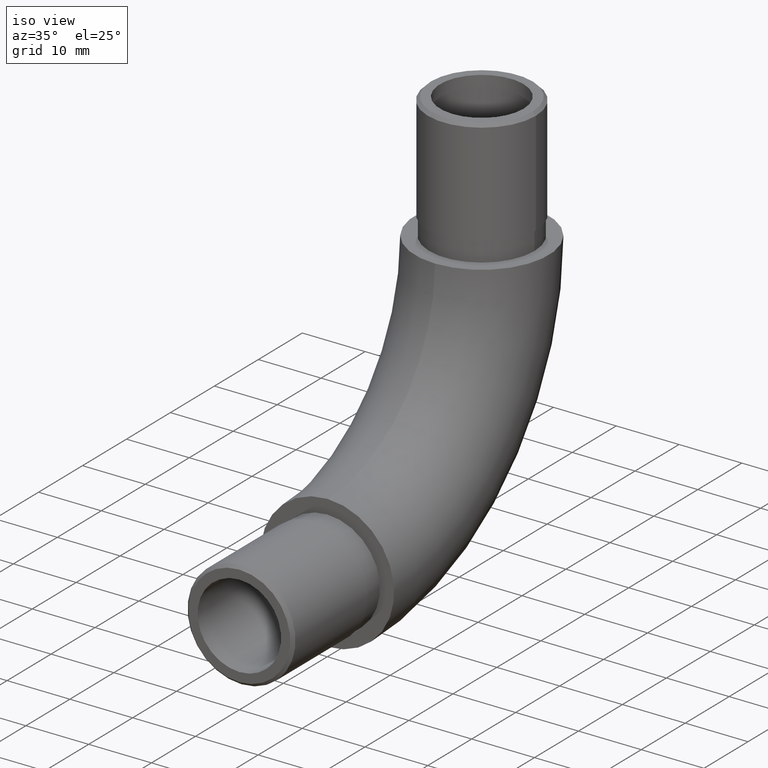
[diagram: clean part render]
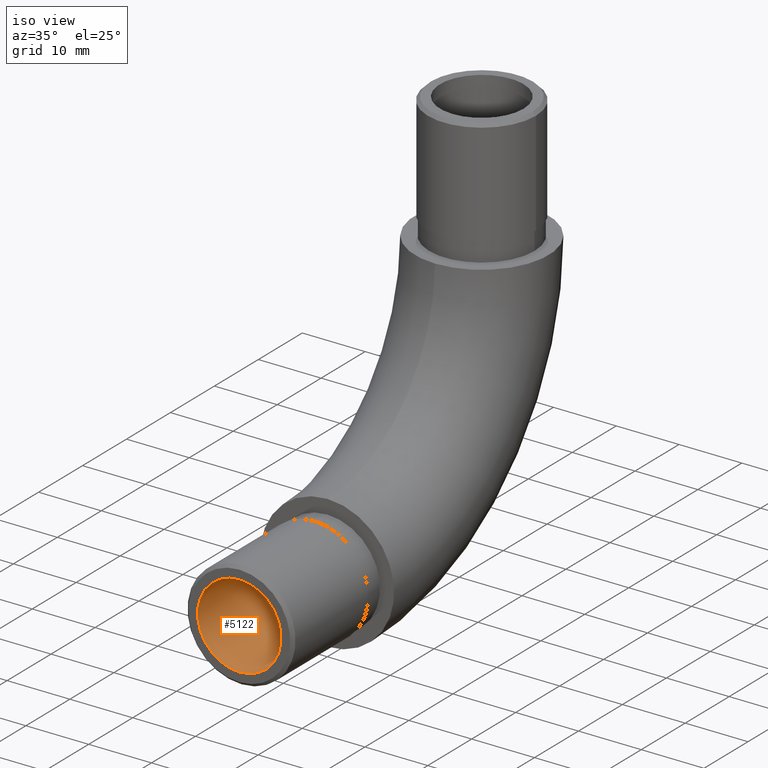
[diagram: same view with one face highlighted and labeled with its STEP entity id]
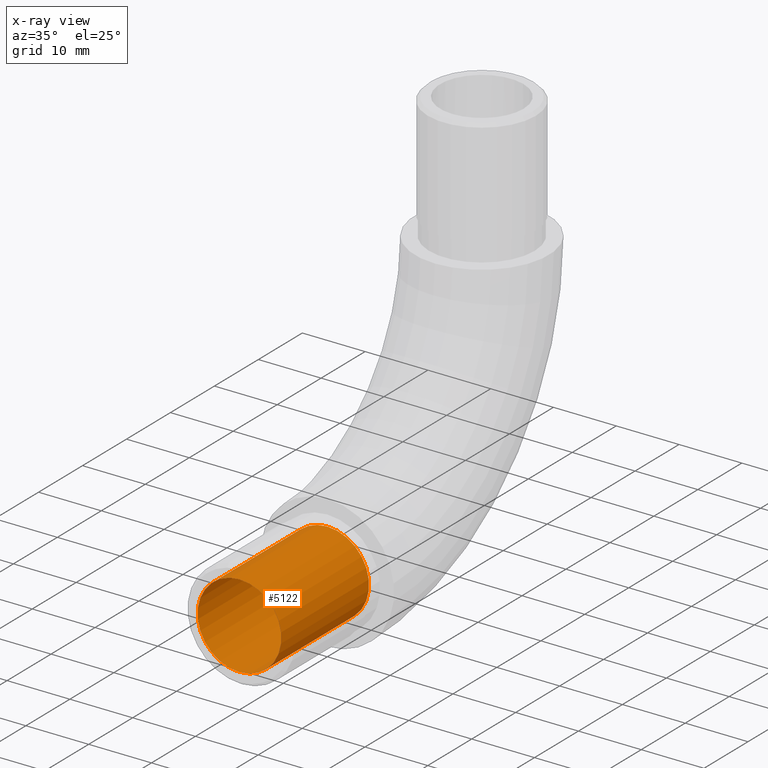
[diagram: x-ray of the same camera — body ghosted, the highlighted face saturated]
A machine part, iso view. The second image highlights one B-rep face of the part: STEP entity #5122.
The next image is the same camera in x-ray: the body ghosted, the highlighted face saturated — about 0% of this face is hidden behind the body in this view.
In plain terms, the highlighted cylindrical surface (bore or boss wall) has radius 6.65 mm, axis along (-0, 1, -0).
Its self-contained STEP definition (entity closure, byte-faithful):
#1228 = CARTESIAN_POINT ( 'NONE',  ( 0.0000000000000000000, -3.000000000000000000, 10.65000000000000000 ) ) ;
#1289 = EDGE_LOOP ( 'NONE', ( #3517 ) ) ;
#1318 = CARTESIAN_POINT ( 'NONE',  ( 0.0000000000000000000, -20.00000000000000000, 3.999999999999999100 ) ) ;
#1716 = FACE_OUTER_BOUND ( 'NONE', #1289, .T. ) ;
#1899 = AXIS2_PLACEMENT_3D ( 'NONE', #1228, #12139, #3425 ) ;
#2061 = CYLINDRICAL_SURFACE ( 'NONE', #1899, 6.649999999999999500 ) ;
#2077 = VERTEX_POINT ( 'NONE', #1318 ) ;
#2196 = EDGE_CURVE ( 'NONE', #4957, #4957, #2787, .T. ) ;
#2787 = CIRCLE ( 'NONE', #4425, 6.649999999999999500 ) ;
#3281 = DIRECTION ( 'NONE',  ( 0.0000000000000000000, 0.0000000000000000000, 1.000000000000000000 ) ) ;
#3425 = DIRECTION ( 'NONE',  ( 0.0000000000000000000, 0.0000000000000000000, 1.000000000000000000 ) ) ;
#3517 = ORIENTED_EDGE ( 'NONE', *, *, #7918, .T. ) ;
#3603 = FACE_OUTER_BOUND ( 'NONE', #8044, .T. ) ;
#4419 = DIRECTION ( 'NONE',  ( 0.0000000000000000000, 1.000000000000000000, 0.0000000000000000000 ) ) ;
#4425 = AXIS2_PLACEMENT_3D ( 'NONE', #9736, #4419, #3281 ) ;
#4957 = VERTEX_POINT ( 'NONE', #6649 ) ;
#5122 = ADVANCED_FACE ( 'NONE', ( #3603, #1716 ), #2061, .F. ) ;
#6649 = CARTESIAN_POINT ( 'NONE',  ( 0.0000000000000000000, -6.938893903907228400E-015, 17.30000000000000100 ) ) ;
#7008 = DIRECTION ( 'NONE',  ( 0.0000000000000000000, -1.000000000000000000, 0.0000000000000000000 ) ) ;
#7443 = ORIENTED_EDGE ( 'NONE', *, *, #2196, .T. ) ;
#7918 = EDGE_CURVE ( 'NONE', #2077, #2077, #12645, .T. ) ;
#8044 = EDGE_LOOP ( 'NONE', ( #7443 ) ) ;
#9196 = CARTESIAN_POINT ( 'NONE',  ( 0.0000000000000000000, -20.00000000000000000, 10.65000000000000000 ) ) ;
#9736 = CARTESIAN_POINT ( 'NONE',  ( 0.0000000000000000000, -6.938893903907228400E-015, 10.65000000000000000 ) ) ;
#12139 = DIRECTION ( 'NONE',  ( -0.0000000000000000000, 1.000000000000000000, -0.0000000000000000000 ) ) ;
#12338 = DIRECTION ( 'NONE',  ( 0.0000000000000000000, 0.0000000000000000000, -1.000000000000000000 ) ) ;
#12428 = AXIS2_PLACEMENT_3D ( 'NONE', #9196, #7008, #12338 ) ;
#12645 = CIRCLE ( 'NONE', #12428, 6.650000000000000400 ) ;